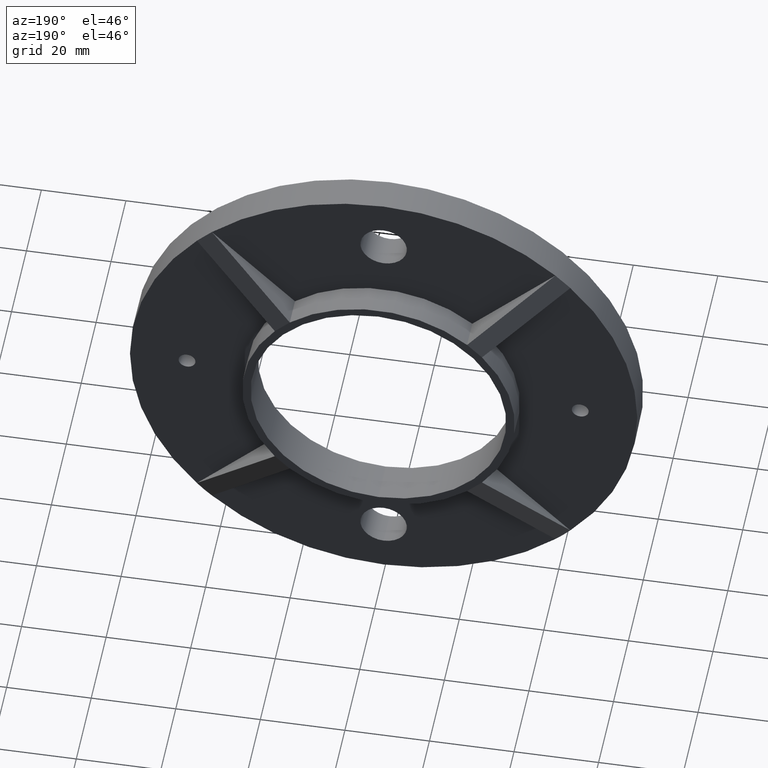
[diagram: clean part render]
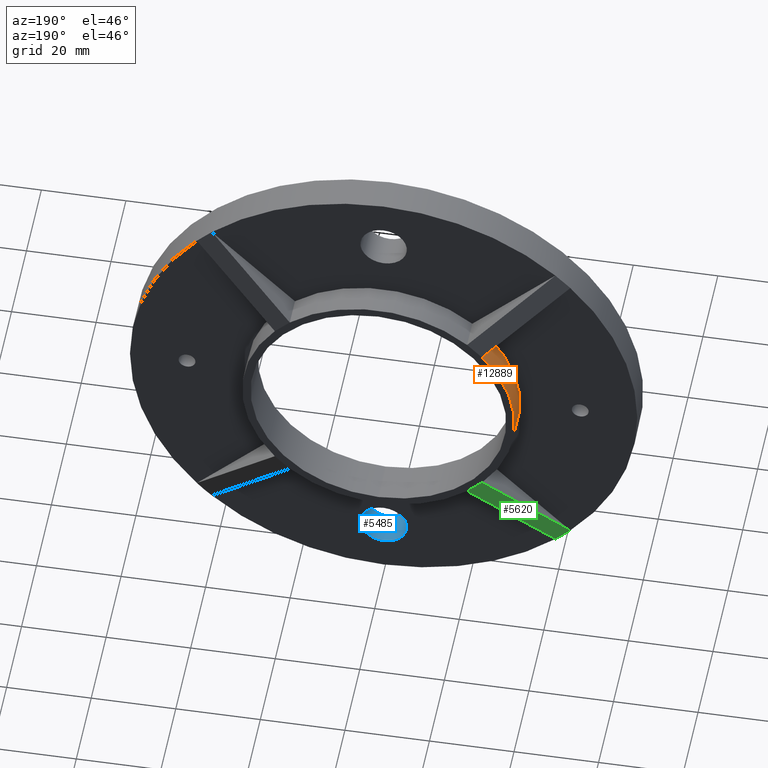
[diagram: same view with three faces highlighted in distinct colors, each labeled with its STEP entity id]
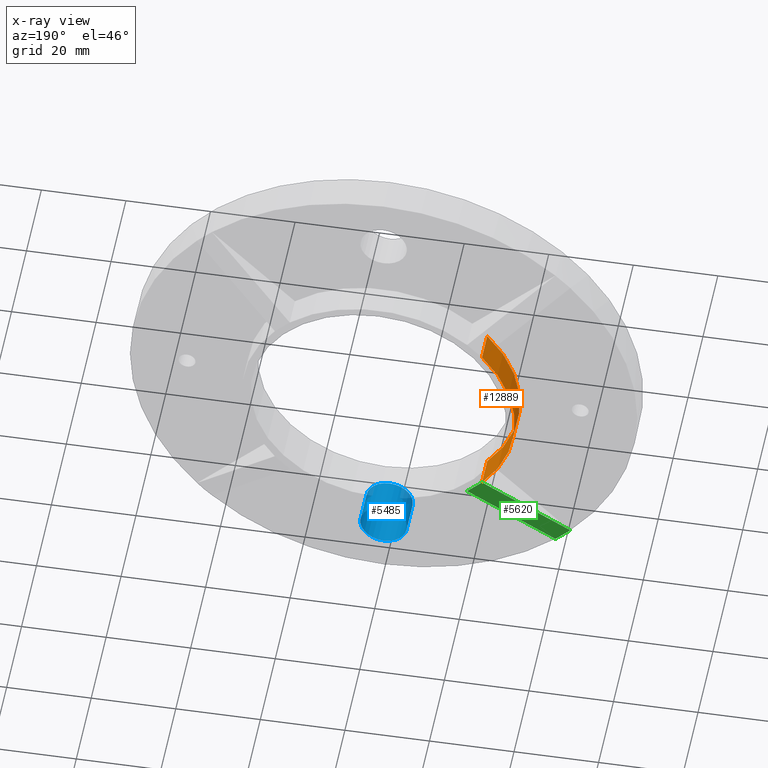
[diagram: x-ray of the same camera — body ghosted, the three highlighted faces saturated]
A machine part, auxiliary view with three faces highlighted in distinct colors.
The next image is the same camera in x-ray (body ghosted, the three faces saturated) — at least one of them is partly hidden behind the body in this view.
Their STEP definitions:

[orange] entity #12889 — the highlighted cylindrical surface (partial cylindrical patch) has radius 32.25 mm, axis along (-0, -1, -0).
#281 = DIRECTION ( 'NONE',  ( 0.000000000000000000, 0.000000000000000000, 1.000000000000000000 ) ) ;
#578 = ORIENTED_EDGE ( 'NONE', *, *, #8255, .T. ) ;
#822 = EDGE_CURVE ( 'NONE', #8891, #6184, #11196, .T. ) ;
#1451 = AXIS2_PLACEMENT_3D ( 'NONE', #11086, #1638, #10829 ) ;
#1555 = ORIENTED_EDGE ( 'NONE', *, *, #10297, .F. ) ;
#1638 = DIRECTION ( 'NONE',  ( -0.000000000000000000, -1.000000000000000000, -0.000000000000000000 ) ) ;
#2014 = DIRECTION ( 'NONE',  ( -0.000000000000000000, -1.000000000000000000, -0.000000000000000000 ) ) ;
#2523 = CARTESIAN_POINT ( 'NONE',  ( -24.50333930116116576, 8.000000000000000000, -20.96780539522843512 ) ) ;
#2857 = DIRECTION ( 'NONE',  ( 0.000000000000000000, 1.000000000000000000, 0.000000000000000000 ) ) ;
#3293 = DIRECTION ( 'NONE',  ( 0.000000000000000000, 1.000000000000000000, 0.000000000000000000 ) ) ;
#3343 = CYLINDRICAL_SURFACE ( 'NONE', #1451, 32.25000000000000000 ) ;
#3795 = CARTESIAN_POINT ( 'NONE',  ( -24.50333930116117287, 15.00000000000000355, -20.96780539522843156 ) ) ;
#3886 = EDGE_LOOP ( 'NONE', ( #578, #10833, #7459, #1555 ) ) ;
#4030 = CARTESIAN_POINT ( 'NONE',  ( -24.50333930116117287, 15.00000000000000000, 20.96780539522843156 ) ) ;
#4526 = LINE ( 'NONE', #5109, #6439 ) ;
#4844 = DIRECTION ( 'NONE',  ( 0.000000000000000000, 0.000000000000000000, 1.000000000000000000 ) ) ;
#4870 = AXIS2_PLACEMENT_3D ( 'NONE', #6251, #3293, #281 ) ;
#5109 = CARTESIAN_POINT ( 'NONE',  ( -24.50333930116117287, 47.79493927827718380, 20.96780539522843156 ) ) ;
#5783 = DIRECTION ( 'NONE',  ( -0.000000000000000000, -1.000000000000000000, -0.000000000000000000 ) ) ;
#6184 = VERTEX_POINT ( 'NONE', #11806 ) ;
#6251 = CARTESIAN_POINT ( 'NONE',  ( 0.000000000000000000, 8.000000000000000000, 0.000000000000000000 ) ) ;
#6439 = VECTOR ( 'NONE', #2014, 1000.000000000000000 ) ;
#6595 = CIRCLE ( 'NONE', #6910, 32.25000000000000000 ) ;
#6910 = AXIS2_PLACEMENT_3D ( 'NONE', #10940, #2857, #4844 ) ;
#7459 = ORIENTED_EDGE ( 'NONE', *, *, #10041, .F. ) ;
#7745 = LINE ( 'NONE', #10900, #13138 ) ;
#8255 = EDGE_CURVE ( 'NONE', #11543, #8891, #7745, .T. ) ;
#8891 = VERTEX_POINT ( 'NONE', #2523 ) ;
#10041 = EDGE_CURVE ( 'NONE', #10670, #6184, #4526, .T. ) ;
#10297 = EDGE_CURVE ( 'NONE', #11543, #10670, #6595, .T. ) ;
#10670 = VERTEX_POINT ( 'NONE', #4030 ) ;
#10829 = DIRECTION ( 'NONE',  ( 0.000000000000000000, 0.000000000000000000, -1.000000000000000000 ) ) ;
#10833 = ORIENTED_EDGE ( 'NONE', *, *, #822, .T. ) ;
#10900 = CARTESIAN_POINT ( 'NONE',  ( -24.50333930116116576, 47.79493927827718380, -20.96780539522843512 ) ) ;
#10940 = CARTESIAN_POINT ( 'NONE',  ( 0.000000000000000000, 15.00000000000000000, 0.000000000000000000 ) ) ;
#11086 = CARTESIAN_POINT ( 'NONE',  ( 0.000000000000000000, 15.00000000000000000, 0.000000000000000000 ) ) ;
#11196 = CIRCLE ( 'NONE', #4870, 32.25000000000000000 ) ;
#11543 = VERTEX_POINT ( 'NONE', #3795 ) ;
#11806 = CARTESIAN_POINT ( 'NONE',  ( -24.50333930116117287, 8.000000000000000000, 20.96780539522843156 ) ) ;
#11946 = FACE_OUTER_BOUND ( 'NONE', #3886, .T. ) ;
#12889 = ADVANCED_FACE ( 'NONE', ( #11946 ), #3343, .T. ) ;
#13138 = VECTOR ( 'NONE', #5783, 1000.000000000000000 ) ;

[blue] entity #5485 — the highlighted cylindrical surface (bore or boss wall) has radius 5.5 mm, axis along (-0, -1, -0).
#323 = VERTEX_POINT ( 'NONE', #8827 ) ;
#493 = AXIS2_PLACEMENT_3D ( 'NONE', #7225, #5238, #7090 ) ;
#761 = ORIENTED_EDGE ( 'NONE', *, *, #7575, .F. ) ;
#915 = EDGE_LOOP ( 'NONE', ( #761 ) ) ;
#1252 = ORIENTED_EDGE ( 'NONE', *, *, #2863, .T. ) ;
#1258 = AXIS2_PLACEMENT_3D ( 'NONE', #10843, #6785, #7904 ) ;
#1324 = CIRCLE ( 'NONE', #1258, 5.499999999999998224 ) ;
#1679 = DIRECTION ( 'NONE',  ( 0.000000000000000000, 1.000000000000000000, -0.000000000000000000 ) ) ;
#1718 = CARTESIAN_POINT ( 'NONE',  ( 0.000000000000000000, 0.000000000000000000, -52.00000000000000000 ) ) ;
#1888 = EDGE_LOOP ( 'NONE', ( #1252 ) ) ;
#2027 = AXIS2_PLACEMENT_3D ( 'NONE', #6766, #1679, #12903 ) ;
#2863 = EDGE_CURVE ( 'NONE', #323, #323, #10660, .T. ) ;
#5238 = DIRECTION ( 'NONE',  ( -0.000000000000000000, -1.000000000000000000, -0.000000000000000000 ) ) ;
#5485 = ADVANCED_FACE ( 'NONE', ( #9667, #11714 ), #11244, .F. ) ;
#6766 = CARTESIAN_POINT ( 'NONE',  ( 0.000000000000000000, 8.000000000000000000, -46.50000000000000000 ) ) ;
#6785 = DIRECTION ( 'NONE',  ( 0.000000000000000000, 1.000000000000000000, -0.000000000000000000 ) ) ;
#7090 = DIRECTION ( 'NONE',  ( 0.000000000000000000, 0.000000000000000000, -1.000000000000000000 ) ) ;
#7225 = CARTESIAN_POINT ( 'NONE',  ( 0.000000000000000000, 8.000000000000000000, -46.50000000000000000 ) ) ;
#7575 = EDGE_CURVE ( 'NONE', #10195, #10195, #1324, .T. ) ;
#7904 = DIRECTION ( 'NONE',  ( 0.000000000000000000, 0.000000000000000000, -1.000000000000000000 ) ) ;
#8827 = CARTESIAN_POINT ( 'NONE',  ( 0.000000000000000000, 8.000000000000000000, -52.00000000000000000 ) ) ;
#9667 = FACE_OUTER_BOUND ( 'NONE', #1888, .T. ) ;
#10195 = VERTEX_POINT ( 'NONE', #1718 ) ;
#10660 = CIRCLE ( 'NONE', #2027, 5.499999999999998224 ) ;
#10843 = CARTESIAN_POINT ( 'NONE',  ( 0.000000000000000000, 0.000000000000000000, -46.50000000000000000 ) ) ;
#11244 = CYLINDRICAL_SURFACE ( 'NONE', #493, 5.499999999999998224 ) ;
#11714 = FACE_OUTER_BOUND ( 'NONE', #915, .T. ) ;
#12903 = DIRECTION ( 'NONE',  ( 0.000000000000000000, 0.000000000000000000, -1.000000000000000000 ) ) ;

[green] entity #5620 — the highlighted planar face has unit normal (0.1727, -0.9697, 0.1727).
#6 = VERTEX_POINT ( 'NONE', #8617 ) ;
#241 = CARTESIAN_POINT ( 'NONE',  ( -82.73557234819486439, 15.00000000000000000, 37.26442765180503613 ) ) ;
#373 = DIRECTION ( 'NONE',  ( 0.1726886347381328679, -0.9697202023597112364, 0.1726886347381335340 ) ) ;
#1008 = CARTESIAN_POINT ( 'NONE',  ( -102.3895623945329447, 8.000000000000000000, 17.61043760546687764 ) ) ;
#1138 = ORIENTED_EDGE ( 'NONE', *, *, #11656, .T. ) ;
#2125 = CARTESIAN_POINT ( 'NONE',  ( -20.96780539522843512, 15.00000000000000000, -24.50333930116116932 ) ) ;
#2780 = CARTESIAN_POINT ( 'NONE',  ( -19.01150999127893115, 16.95597968038752157, -15.47597608534614899 ) ) ;
#2808 = DIRECTION ( 'NONE',  ( 0.7071067811865489050, -0.000000000000000000, -0.7071067811865462405 ) ) ;
#3251 = LINE ( 'NONE', #11369, #12014 ) ;
#3795 = CARTESIAN_POINT ( 'NONE',  ( -24.50333930116117287, 15.00000000000000355, -20.96780539522843156 ) ) ;
#4820 = VERTEX_POINT ( 'NONE', #2125 ) ;
#5181 = EDGE_CURVE ( 'NONE', #11543, #6, #8239, .T. ) ;
#5365 = EDGE_LOOP ( 'NONE', ( #1138, #12517, #7348, #7990 ) ) ;
#5620 = ADVANCED_FACE ( 'NONE', ( #5843 ), #6344, .F. ) ;
#5843 = FACE_OUTER_BOUND ( 'NONE', #5365, .T. ) ;
#6344 = PLANE ( 'NONE',  #11404 ) ;
#6494 = DIRECTION ( 'NONE',  ( -0.6856957309421407576, -0.2442186093143615122, -0.6856957309421449764 ) ) ;
#7348 = ORIENTED_EDGE ( 'NONE', *, *, #10710, .F. ) ;
#7367 = DIRECTION ( 'NONE',  ( 0.000000000000000000, -0.1753226000607085444, -0.9845110389975080256 ) ) ;
#7761 = VECTOR ( 'NONE', #6494, 1000.000000000000000 ) ;
#7990 = ORIENTED_EDGE ( 'NONE', *, *, #5181, .F. ) ;
#8239 = LINE ( 'NONE', #2780, #7761 ) ;
#8309 = DIRECTION ( 'NONE',  ( -0.6856957309421415347, -0.2442186093143615677, -0.6856957309421443103 ) ) ;
#8516 = EDGE_CURVE ( 'NONE', #4820, #8556, #3251, .T. ) ;
#8556 = VERTEX_POINT ( 'NONE', #11414 ) ;
#8617 = CARTESIAN_POINT ( 'NONE',  ( -44.15732934749923544, 8.000000000000003553, -40.62179544156661137 ) ) ;
#8824 = LINE ( 'NONE', #1008, #13093 ) ;
#8982 = LINE ( 'NONE', #11048, #9123 ) ;
#9123 = VECTOR ( 'NONE', #2808, 1000.000000000000000 ) ;
#10710 = EDGE_CURVE ( 'NONE', #6, #8556, #8824, .T. ) ;
#11048 = CARTESIAN_POINT ( 'NONE',  ( -82.73557234819486439, 15.00000000000000000, 37.26442765180503613 ) ) ;
#11369 = CARTESIAN_POINT ( 'NONE',  ( -20.96780539522845288, 15.00000000000000000, -24.50333930116113734 ) ) ;
#11404 = AXIS2_PLACEMENT_3D ( 'NONE', #241, #373, #7367 ) ;
#11414 = CARTESIAN_POINT ( 'NONE',  ( -40.62179544156653321, 8.000000000000000000, -44.15732934749929228 ) ) ;
#11543 = VERTEX_POINT ( 'NONE', #3795 ) ;
#11656 = EDGE_CURVE ( 'NONE', #11543, #4820, #8982, .T. ) ;
#12014 = VECTOR ( 'NONE', #8309, 999.9999999999998863 ) ;
#12168 = DIRECTION ( 'NONE',  ( 0.7071067811865489050, -0.000000000000000000, -0.7071067811865462405 ) ) ;
#12517 = ORIENTED_EDGE ( 'NONE', *, *, #8516, .T. ) ;
#13093 = VECTOR ( 'NONE', #12168, 1000.000000000000000 ) ;